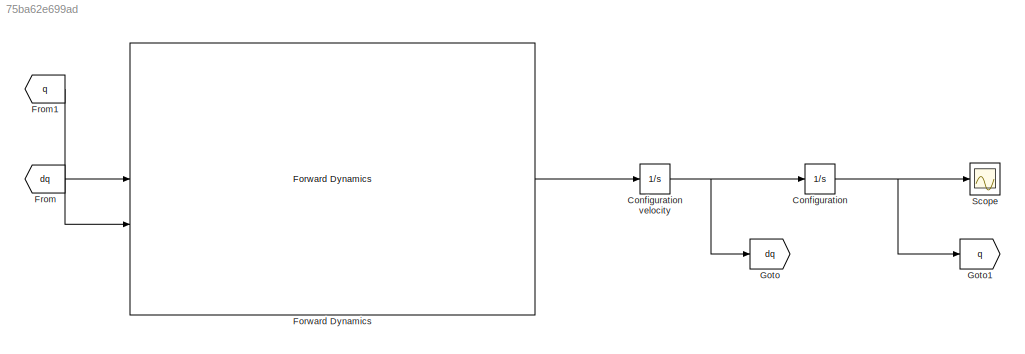
MODEL slx_75ba62e699ad
KIND model
CONFIG AbsTol = auto
CONFIG EnableMultiTasking = off
CONFIG FixedStep = auto
CONFIG MaxStep = auto
CONFIG MinStep = auto
CONFIG RelTol = 1e-3
CONFIG SampleTimeConstraint = Unconstrained
CONFIG SolverName = VariableStepAuto
CONFIG StartTime = 0.0
CONFIG StopTime = 10.0
BLOCK [Integrator] Configuration
BLOCK [Integrator] Configuration velocity
BLOCK [Reference] Forward Dynamics  REF=SoftRobotics/Forward Dynamics
  SourceBlock = SoftRobotics/Forward Dynamics
  SourceProductName = Jelly
BLOCK [From] From
  GotoTag = dq
BLOCK [From] From1
  GotoTag = q
BLOCK [Goto] Goto
  GotoTag = dq
BLOCK [Goto] Goto1
  GotoTag = q
BLOCK [Scope] Scope
  Floating = off
  NumInputPorts = 1
  ScopeSpecificationString = Simulink.scopes.TimeScopeBlockCfg('CurrentConfiguration', extmgr.ConfigurationSet(extmgr.Configuration('Core','General UI',true),extmgr.Configuration('Core','Source UI',true),extmgr.Configuration('Sources','WiredSimulink',true),extmgr.Configuration('Visuals','Time Domain',true),extmgr.Configuration('Tools','Plot Navigation',true),extmgr.Configuration('Tools','Measurements',true)),'Version','2023b'...<+1ch>
NET Configuration velocity:1 -> Configuration:1, Goto:1
NET Configuration:1 -> Goto1:1, Scope:1
LINE Forward Dynamics:1 -> Configuration velocity:1
LINE From1:1 -> Forward Dynamics:1
LINE From:1 -> Forward Dynamics:2
note: NET lines group one-source signal fan-out (src -> all destinations, sorted); 1:1 wires keep LINE
